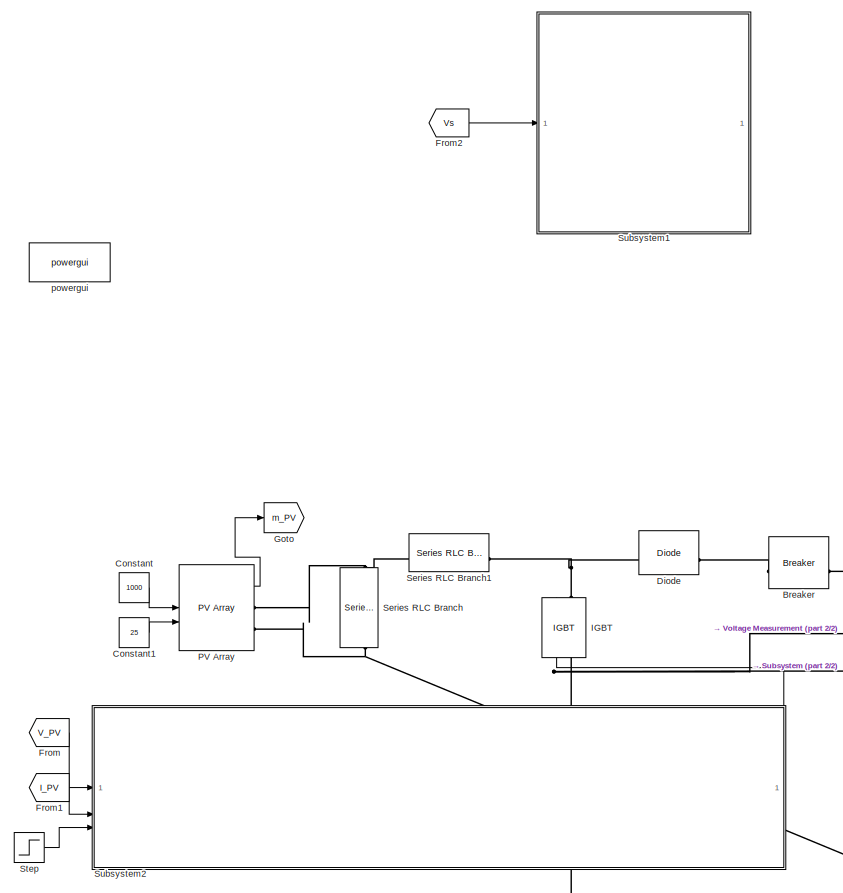
[diagram: root canvas - part 1/2, left side, full height]
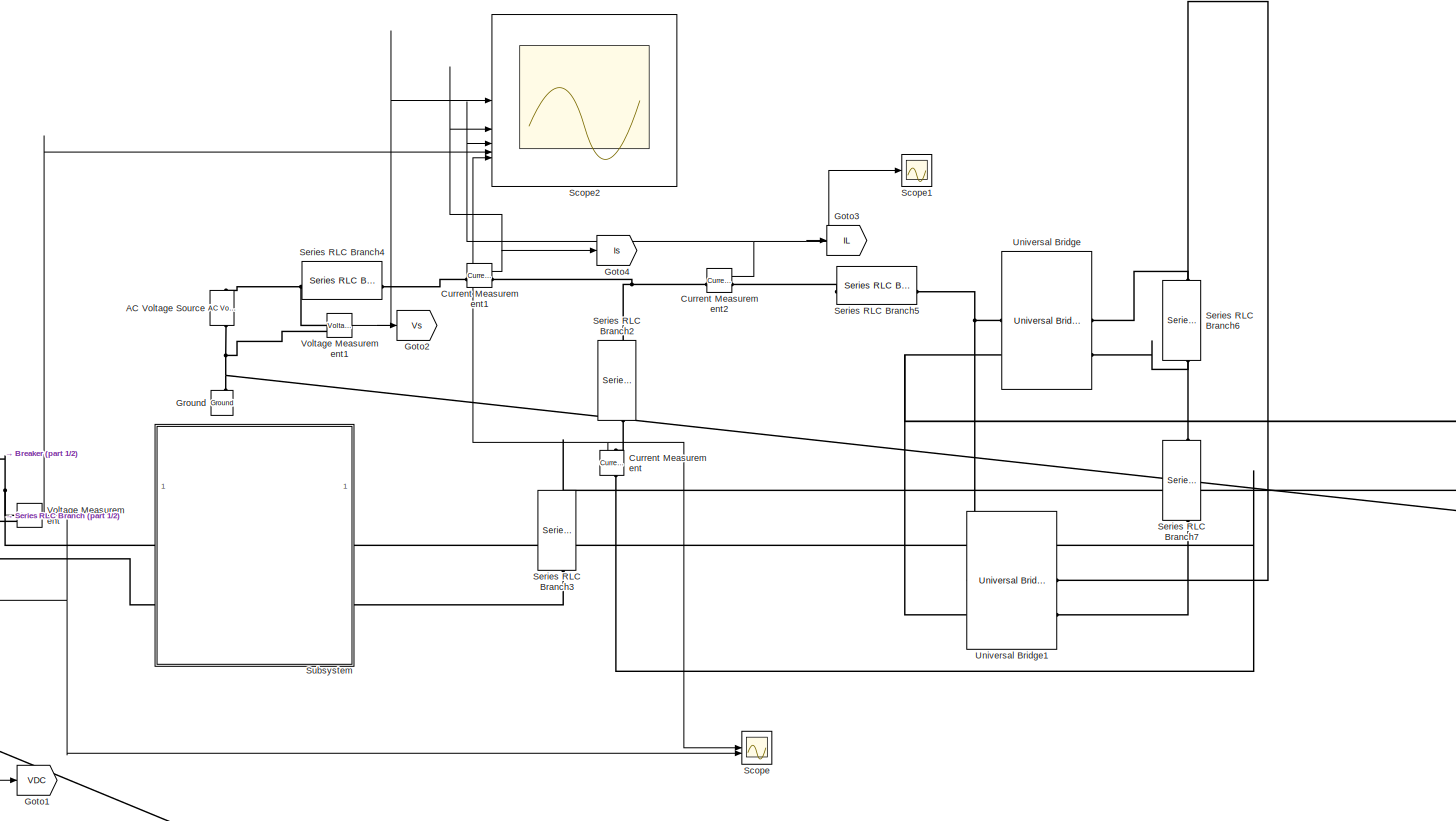
[diagram: root canvas - part 2/2, center side, full height]
MODEL slx_23263aa88aeb
KIND model
CONFIG AbsTol = auto
CONFIG EnableMultiTasking = off
CONFIG FixedStep = auto
CONFIG MaxStep = auto
CONFIG MinStep = auto
CONFIG RelTol = 1e-3
CONFIG SampleTimeConstraint = Unconstrained
CONFIG SolverName = VariableStepAuto
CONFIG StartTime = 0.0
CONFIG StopTime = 2
BLOCK [Reference] AC Voltage Source  REF=spsACVoltageSourceLib/AC Voltage Source
  LibrarySourceBlock = sps_lib/Sources/AC Voltage Source
  SourceBlock = spsACVoltageSourceLib/AC Voltage Source
  SourceType = AC Voltage Source
BLOCK [Reference] Breaker  REF=spsBreakerLib/Breaker
  LibrarySourceBlock = sps_lib/Power Grid Elements/Breaker
  SourceBlock = spsBreakerLib/Breaker
  SourceType = Breaker
BLOCK [Constant] Constant
  Value = 1000
BLOCK [Constant] Constant1
  Value = 25
BLOCK [Reference] Current Measurement  REF=spsCurrentMeasurementLib/Current Measurement
  LibrarySourceBlock = sps_lib/Sensors and Measurements/Current Measurement
  NameLocation = right
  SourceBlock = spsCurrentMeasurementLib/Current Measurement
  SourceType = Current Measurement
  UserDataPersistent = on
BLOCK [Reference] Current Measurement1  REF=spsCurrentMeasurementLib/Current Measurement
  LibrarySourceBlock = sps_lib/Sensors and Measurements/Current Measurement
  SourceBlock = spsCurrentMeasurementLib/Current Measurement
  SourceType = Current Measurement
  UserDataPersistent = on
BLOCK [Reference] Current Measurement2  REF=spsCurrentMeasurementLib/Current Measurement
  LibrarySourceBlock = sps_lib/Sensors and Measurements/Current Measurement
  SourceBlock = spsCurrentMeasurementLib/Current Measurement
  SourceType = Current Measurement
  UserDataPersistent = on
BLOCK [Reference] Diode  REF=spsDiodeLib/Diode
  LibrarySourceBlock = sps_lib/Power Electronics/Diode
  SourceBlock = spsDiodeLib/Diode
  SourceType = Diode
BLOCK [From] From
  GotoTag = V_PV
BLOCK [From] From1
  GotoTag = I_PV
BLOCK [From] From2
  GotoTag = Vs
  TagVisibility = global
BLOCK [Goto] Goto
  GotoTag = m_PV
  TagVisibility = global
BLOCK [Goto] Goto1
  GotoTag = VDC
  TagVisibility = global
BLOCK [Goto] Goto2
  GotoTag = Vs
  TagVisibility = global
BLOCK [Goto] Goto3
  GotoTag = IL
  TagVisibility = global
BLOCK [Goto] Goto4
  GotoTag = Is
  TagVisibility = global
BLOCK [Reference] Ground  REF=spsGroundLib/Ground
  LibrarySourceBlock = sps_lib/Utilities/Ground
  NameLocation = right
  SourceBlock = spsGroundLib/Ground
  SourceType = Ground
BLOCK [Reference] IGBT  REF=spsIGBTLib/IGBT
  LibrarySourceBlock = sps_lib/Power Electronics/IGBT
  NameLocation = left
  SourceBlock = spsIGBTLib/IGBT
  SourceType = IGBT
BLOCK [Reference] PV Array  REF=spsPVArrayLib/PV Array
  LibrarySourceBlock = sps_lib/Sources/PV Array
  SourceBlock = spsPVArrayLib/PV Array
  SourceType = PV array
BLOCK [Scope] Scope
  Floating = off
  NumInputPorts = 2
  ScopeSpecificationString = Simulink.scopes.TimeScopeBlockCfg('CurrentConfiguration', extmgr.ConfigurationSet(extmgr.Configuration('Core','General UI',true),extmgr.Configuration('Core','Source UI',true),extmgr.Configuration('Sources','WiredSimulink',true),extmgr.Configuration('Visuals','Time Domain',true),extmgr.Configuration('Tools','Plot Navigation',true),extmgr.Configuration('Tools','Measurements',true)),'Version','2024a'...<+1ch>
BLOCK [Scope] Scope1
  Floating = off
  NumInputPorts = 1
  ScopeSpecificationString = Simulink.scopes.TimeScopeBlockCfg('CurrentConfiguration', extmgr.ConfigurationSet(extmgr.Configuration('Core','General UI',true),extmgr.Configuration('Core','Source UI',true),extmgr.Configuration('Sources','WiredSimulink',true,'DataLoggingVariableName','ScopeData1'),extmgr.Configuration('Visuals','Time Domain',true),extmgr.Configuration('Tools','Plot Navigation',true),extmgr.Configuration('Tools',...<+40ch>
BLOCK [Scope] Scope2
  Floating = off
  NumInputPorts = 5
  ScopeSpecificationString = Simulink.scopes.TimeScopeBlockCfg('CurrentConfiguration', extmgr.ConfigurationSet(extmgr.Configuration('Core','General UI',true),extmgr.Configuration('Core','Source UI',true),extmgr.Configuration('Sources','WiredSimulink',true,'DataLoggingVariableName','ScopeData2'),extmgr.Configuration('Visuals','Time Domain',true,'SerializedDisplays',{struct('MinYLimReal','-287.5','MaxYLimReal','287.5','YLabelRe...<+5440ch>
BLOCK [Reference] Series RLC Branch  REF=spsSeriesRLCBranchLib/Series RLC Branch
  LibrarySourceBlock = sps_lib/Passives/Series RLC Branch
  NameLocation = left
  SourceBlock = spsSeriesRLCBranchLib/Series RLC Branch
  SourceType = Series RLC Branch
BLOCK [Reference] Series RLC Branch1  REF=spsSeriesRLCBranchLib/Series RLC Branch
  LibrarySourceBlock = sps_lib/Passives/Series RLC Branch
  NameLocation = top
  SourceBlock = spsSeriesRLCBranchLib/Series RLC Branch
  SourceType = Series RLC Branch
BLOCK [Reference] Series RLC Branch2  REF=spsSeriesRLCBranchLib/Series RLC Branch
  LibrarySourceBlock = sps_lib/Passives/Series RLC Branch
  NameLocation = left
  SourceBlock = spsSeriesRLCBranchLib/Series RLC Branch
  SourceType = Series RLC Branch
BLOCK [Reference] Series RLC Branch3  REF=spsSeriesRLCBranchLib/Series RLC Branch
  LibrarySourceBlock = sps_lib/Passives/Series RLC Branch
  NameLocation = left
  SourceBlock = spsSeriesRLCBranchLib/Series RLC Branch
  SourceType = Series RLC Branch
BLOCK [Reference] Series RLC Branch4  REF=spsSeriesRLCBranchLib/Series RLC Branch
  LibrarySourceBlock = sps_lib/Passives/Series RLC Branch
  SourceBlock = spsSeriesRLCBranchLib/Series RLC Branch
  SourceType = Series RLC Branch
BLOCK [Reference] Series RLC Branch5  REF=spsSeriesRLCBranchLib/Series RLC Branch
  LibrarySourceBlock = sps_lib/Passives/Series RLC Branch
  SourceBlock = spsSeriesRLCBranchLib/Series RLC Branch
  SourceType = Series RLC Branch
BLOCK [Reference] Series RLC Branch6  REF=spsSeriesRLCBranchLib/Series RLC Branch
  LibrarySourceBlock = sps_lib/Passives/Series RLC Branch
  NameLocation = left
  SourceBlock = spsSeriesRLCBranchLib/Series RLC Branch
  SourceType = Series RLC Branch
BLOCK [Reference] Series RLC Branch7  REF=spsSeriesRLCBranchLib/Series RLC Branch
  LibrarySourceBlock = sps_lib/Passives/Series RLC Branch
  NameLocation = left
  SourceBlock = spsSeriesRLCBranchLib/Series RLC Branch
  SourceType = Series RLC Branch
BLOCK [Step] Step
  SampleTime = 0
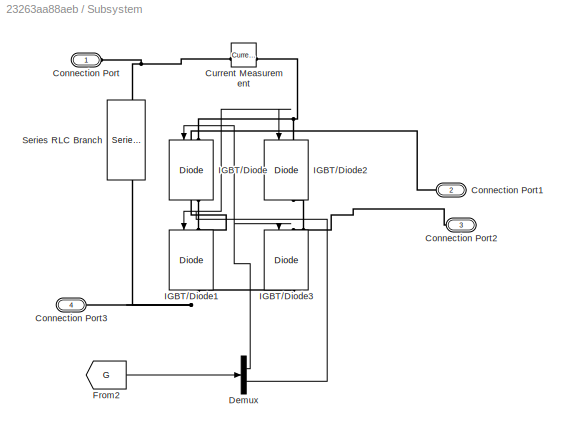
BLOCK [SubSystem] Subsystem
BLOCK [PMIOPort] Subsystem/Connection Port
  Side = Left
BLOCK [PMIOPort] Subsystem/Connection Port1
  NameLocation = top
  Port = 2
  Side = Right
BLOCK [PMIOPort] Subsystem/Connection Port2
  NameLocation = top
  Port = 3
  Side = Right
BLOCK [PMIOPort] Subsystem/Connection Port3
  Port = 4
  Side = Left
BLOCK [Reference] Subsystem/Current Measurement  REF=spsCurrentMeasurementLib/Current Measurement
  LibrarySourceBlock = sps_lib/Sensors and Measurements/Current Measurement
  SourceBlock = spsCurrentMeasurementLib/Current Measurement
  SourceType = Current Measurement
  UserDataPersistent = on
BLOCK [Demux] Subsystem/Demux
  Outputs = 2
BLOCK [From] Subsystem/From2
  GotoTag = G
BLOCK [Reference] Subsystem/IGBT//Diode  REF=spsIGBTDiodeLib/IGBT//Diode
  LibrarySourceBlock = sps_lib/Power Electronics/IGBT//Diode
  NameLocation = left
  SourceBlock = spsIGBTDiodeLib/IGBT//Diode
  SourceType = IGBT/Diode
BLOCK [Reference] Subsystem/IGBT//Diode1  REF=spsIGBTDiodeLib/IGBT//Diode
  LibrarySourceBlock = sps_lib/Power Electronics/IGBT//Diode
  NameLocation = left
  SourceBlock = spsIGBTDiodeLib/IGBT//Diode
  SourceType = IGBT/Diode
BLOCK [Reference] Subsystem/IGBT//Diode2  REF=spsIGBTDiodeLib/IGBT//Diode
  LibrarySourceBlock = sps_lib/Power Electronics/IGBT//Diode
  NameLocation = left
  SourceBlock = spsIGBTDiodeLib/IGBT//Diode
  SourceType = IGBT/Diode
BLOCK [Reference] Subsystem/IGBT//Diode3  REF=spsIGBTDiodeLib/IGBT//Diode
  LibrarySourceBlock = sps_lib/Power Electronics/IGBT//Diode
  NameLocation = left
  SourceBlock = spsIGBTDiodeLib/IGBT//Diode
  SourceType = IGBT/Diode
BLOCK [Reference] Subsystem/Series RLC Branch  REF=spsSeriesRLCBranchLib/Series RLC Branch
  LibrarySourceBlock = sps_lib/Passives/Series RLC Branch
  NameLocation = left
  SourceBlock = spsSeriesRLCBranchLib/Series RLC Branch
  SourceType = Series RLC Branch
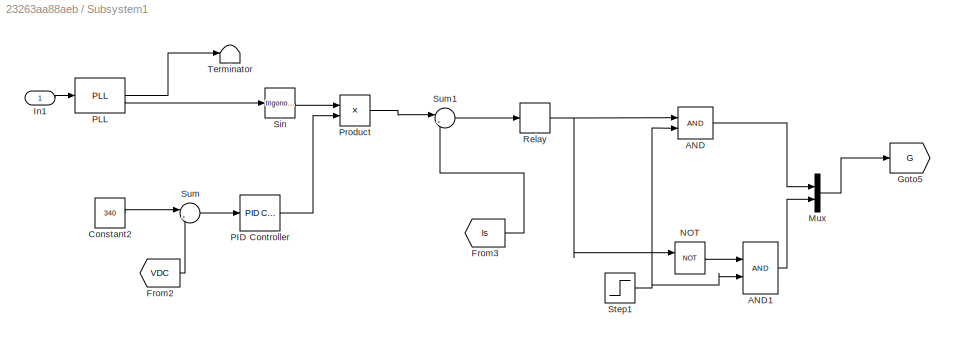
BLOCK [SubSystem] Subsystem1
BLOCK [Logic] Subsystem1/AND
  AllPortsSameDT = off
  IconShape = distinctive
  OutDataTypeStr = boolean
BLOCK [Logic] Subsystem1/AND1
  AllPortsSameDT = off
  IconShape = distinctive
  OutDataTypeStr = boolean
BLOCK [Constant] Subsystem1/Constant2
  Value = 340
BLOCK [From] Subsystem1/From2
  GotoTag = VDC
  TagVisibility = global
BLOCK [From] Subsystem1/From3
  GotoTag = Is
  TagVisibility = global
BLOCK [Goto] Subsystem1/Goto5
  GotoTag = G
BLOCK [Inport] Subsystem1/In1
BLOCK [Mux] Subsystem1/Mux
  DisplayOption = bar
  Inputs = 2
BLOCK [Logic] Subsystem1/NOT
  AllPortsSameDT = off
  IconShape = distinctive
  Operator = NOT
  OutDataTypeStr = boolean
BLOCK [Reference] Subsystem1/PID Controller  REF=slpidlib/PID Controller
  LibrarySourceBlock = simulink/Continuous/PID Controller
  SourceBlock = slpidlib/PID Controller
  SourceType = PID 1dof
BLOCK [Reference] Subsystem1/PLL  REF=spsPLLLib/PLL
  LibrarySourceBlock = sps_lib/Control/PLL
  SourceBlock = spsPLLLib/PLL
  SourceType = PLL
BLOCK [Product] Subsystem1/Product
BLOCK [Relay] Subsystem1/Relay
  OffSwitchValue = -0.02
  OnSwitchValue = 0.02
BLOCK [Trigonometry] Subsystem1/Sin
BLOCK [Step] Subsystem1/Step1
  SampleTime = 0
BLOCK [Sum] Subsystem1/Sum
  Inputs = |+-
BLOCK [Sum] Subsystem1/Sum1
  Inputs = |+-
BLOCK [Terminator] Subsystem1/Terminator
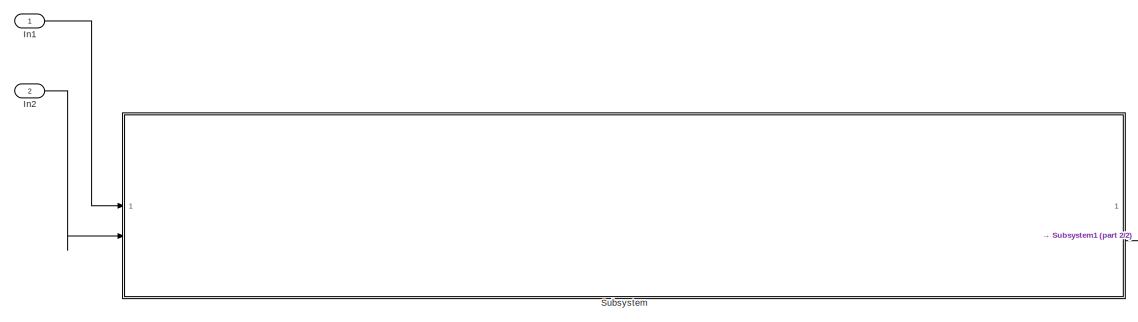
[diagram: Subsystem2 - part 1/2, left side, full height]
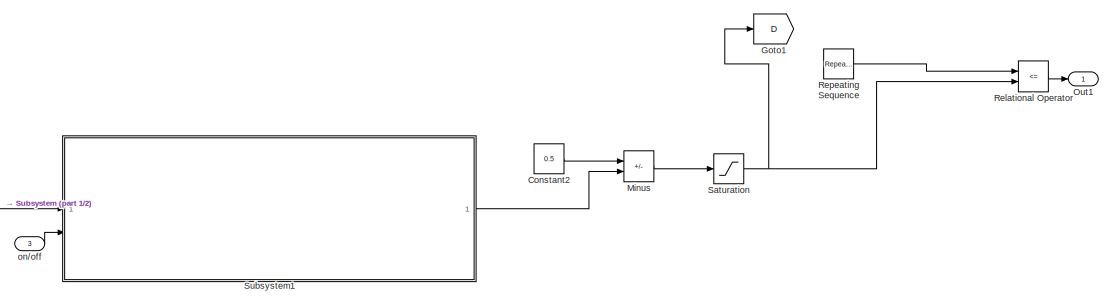
[diagram: Subsystem2 - part 2/2, right side, full height]
BLOCK [SubSystem] Subsystem2
  PortSchema = {"entries":[{"content":{"sides":[{"content":{"connectorIds":["In1","In2","In3"]},"type":"ConnectorPlacement.EquallySpacedRectSide","uuid":"14786eec-0241-4e35-83c3-907b121b9eb2"},{"content":{"side":"RIGHT"},"type":"ConnectorPlacement.EquallySpacedRectSide","uuid":"173d27b1-7f65-4748-b114-d30920d37356"},{"content":{"connectorIds":["Out1"],"side":"TOP"},"type":"ConnectorPlacement.EquallySpacedRectSid...<+234ch>
BLOCK [Constant] Subsystem2/Constant2
  Value = 0.5
BLOCK [Goto] Subsystem2/Goto1
  GotoTag = D
BLOCK [Inport] Subsystem2/In1
BLOCK [Inport] Subsystem2/In2
  Port = 2
BLOCK [Sum] Subsystem2/Minus
  IconShape = rectangular
  Inputs = +-
BLOCK [Outport] Subsystem2/Out1
BLOCK [RelationalOperator] Subsystem2/Relational Operator
  InputSameDT = off
  Operator = <=
  OutDataTypeStr = boolean
  RndMeth = Simplest
BLOCK [Reference] Subsystem2/Repeating Sequence  REF=simulink/Sources/Repeating
Sequence
  SourceBlock = simulink/Sources/Repeating\nSequence
  SourceType = Repeating table
BLOCK [Saturate] Subsystem2/Saturation
  LowerLimit = 0.01
  UpperLimit = 0.99
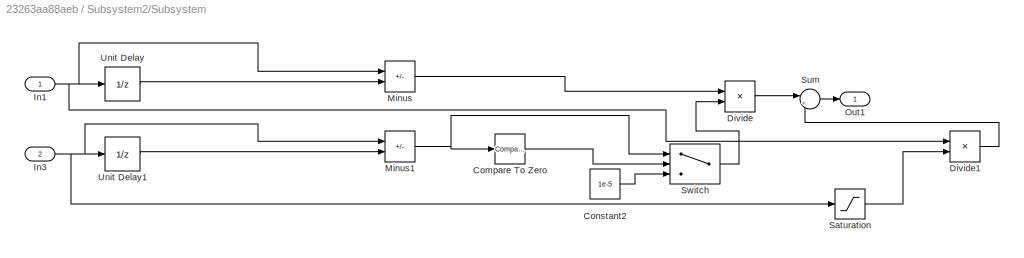
BLOCK [SubSystem] Subsystem2/Subsystem
BLOCK [Reference] Subsystem2/Subsystem/Compare To Zero  REF=simulink/Logic and Bit
Operations/Compare
To Zero
  SourceBlock = simulink/Logic and Bit\nOperations/Compare\nTo Zero
  SourceType = Compare To Zero
BLOCK [Constant] Subsystem2/Subsystem/Constant2
  Value = 1e-5
BLOCK [Product] Subsystem2/Subsystem/Divide
  Inputs = */
BLOCK [Product] Subsystem2/Subsystem/Divide1
  Inputs = */
BLOCK [Inport] Subsystem2/Subsystem/In1
BLOCK [Inport] Subsystem2/Subsystem/In3
  Port = 2
BLOCK [Sum] Subsystem2/Subsystem/Minus
  IconShape = rectangular
  Inputs = +-
BLOCK [Sum] Subsystem2/Subsystem/Minus1
  IconShape = rectangular
  Inputs = +-
BLOCK [Outport] Subsystem2/Subsystem/Out1
BLOCK [Saturate] Subsystem2/Subsystem/Saturation
  LowerLimit = eps
  UpperLimit = inf
BLOCK [Sum] Subsystem2/Subsystem/Sum
  Inputs = |++
BLOCK [Switch] Subsystem2/Subsystem/Switch
  Criteria = u2 > Threshold
  InputSameDT = off
  SaturateOnIntegerOverflow = off
BLOCK [UnitDelay] Subsystem2/Subsystem/Unit Delay
  HasFrameUpgradeWarning = on
  SampleTime = -1
BLOCK [UnitDelay] Subsystem2/Subsystem/Unit Delay1
  HasFrameUpgradeWarning = on
  SampleTime = -1
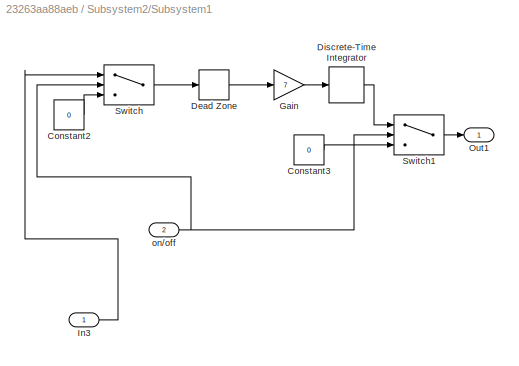
BLOCK [SubSystem] Subsystem2/Subsystem1
BLOCK [Constant] Subsystem2/Subsystem1/Constant2
  Value = 0
BLOCK [Constant] Subsystem2/Subsystem1/Constant3
  Value = 0
BLOCK [DeadZone] Subsystem2/Subsystem1/Dead Zone
  LowerValue = -0.06
  UpperValue = 0.06
BLOCK [DiscreteIntegrator] Subsystem2/Subsystem1/Discrete-Time Integrator
  ICPrevOutput = DiscIntNeverNeededParam
  ICPrevScaledInput = DiscIntNeverNeededParam
  LimitOutput = on
  LowerSaturationLimit = -1
  SampleTime = 1e-5
  UpperSaturationLimit = 1
  gainval = 1.8
BLOCK [Gain] Subsystem2/Subsystem1/Gain
  Gain = 7
BLOCK [Inport] Subsystem2/Subsystem1/In3
BLOCK [Outport] Subsystem2/Subsystem1/Out1
BLOCK [Switch] Subsystem2/Subsystem1/Switch
  Criteria = u2 > Threshold
  InputSameDT = off
  SaturateOnIntegerOverflow = off
  Threshold = 0.5
BLOCK [Switch] Subsystem2/Subsystem1/Switch1
  Criteria = u2 > Threshold
  InputSameDT = off
  SaturateOnIntegerOverflow = off
BLOCK [Inport] Subsystem2/Subsystem1/on//off
  Port = 2
BLOCK [Inport] Subsystem2/on//off
  Port = 3
BLOCK [Reference] Universal Bridge  REF=spsUniversalBridgeLib/Universal Bridge
  LibrarySourceBlock = sps_lib/Power Electronics/Universal Bridge
  SourceBlock = spsUniversalBridgeLib/Universal Bridge
  SourceType = Universal Bridge
BLOCK [Reference] Universal Bridge1  REF=spsUniversalBridgeLib/Universal Bridge
  LibrarySourceBlock = sps_lib/Power Electronics/Universal Bridge
  SourceBlock = spsUniversalBridgeLib/Universal Bridge
  SourceType = Universal Bridge
BLOCK [Reference] Voltage Measurement  REF=spsVoltageMeasurementLib/Voltage Measurement
  LibrarySourceBlock = sps_lib/Sensors and Measurements/Voltage Measurement
  SourceBlock = spsVoltageMeasurementLib/Voltage Measurement
  SourceType = Voltage Measurement
  UserDataPersistent = on
BLOCK [Reference] Voltage Measurement1  REF=spsVoltageMeasurementLib/Voltage Measurement
  LibrarySourceBlock = sps_lib/Sensors and Measurements/Voltage Measurement
  SourceBlock = spsVoltageMeasurementLib/Voltage Measurement
  SourceType = Voltage Measurement
  UserDataPersistent = on
BLOCK [Reference] powergui  REF=sps_lib/powergui
  LibrarySourceBlock = sps_lib/powergui
  Priority = 1
  SourceBlock = sps_lib/powergui
  SourceType = PSB option menu block
LINE Constant1:1 -> PV Array:2
LINE Constant:1 -> PV Array:1
NET Current Measurement1:1 -> Goto4:1, Scope2:2
NET Current Measurement2:1 -> Goto3:1, Scope1:1, Scope2:3
NET Current Measurement:1 -> Scope2:5, Scope:1
LINE From1:1 -> Subsystem2:2
LINE From2:1 -> Subsystem1:1
LINE From:1 -> Subsystem2:1
LINE PV Array:1 -> Goto:1
LINE Step:1 -> Subsystem2:3
NET Subsystem/Demux:1 -> Subsystem/IGBT//Diode3:1, Subsystem/IGBT//Diode:1
NET Subsystem/Demux:2 -> Subsystem/IGBT//Diode1:1, Subsystem/IGBT//Diode2:1
LINE Subsystem/From2:1 -> Subsystem/Demux:1
LINE Subsystem1/AND1:1 -> Subsystem1/Mux:2
LINE Subsystem1/AND:1 -> Subsystem1/Mux:1
LINE Subsystem1/Constant2:1 -> Subsystem1/Sum:1
LINE Subsystem1/From2:1 -> Subsystem1/Sum:2
LINE Subsystem1/From3:1 -> Subsystem1/Sum1:2
LINE Subsystem1/In1:1 -> Subsystem1/PLL:1
LINE Subsystem1/Mux:1 -> Subsystem1/Goto5:1
LINE Subsystem1/NOT:1 -> Subsystem1/AND1:1
LINE Subsystem1/PID Controller:1 -> Subsystem1/Product:2
LINE Subsystem1/PLL:1 -> Subsystem1/Terminator:1
LINE Subsystem1/PLL:2 -> Subsystem1/Sin:1
LINE Subsystem1/Product:1 -> Subsystem1/Sum1:1
NET Subsystem1/Relay:1 -> Subsystem1/AND:1, Subsystem1/NOT:1
LINE Subsystem1/Sin:1 -> Subsystem1/Product:1
NET Subsystem1/Step1:1 -> Subsystem1/AND1:2, Subsystem1/AND:2
LINE Subsystem1/Sum1:1 -> Subsystem1/Relay:1
LINE Subsystem1/Sum:1 -> Subsystem1/PID Controller:1
LINE Subsystem2/Constant2:1 -> Subsystem2/Minus:1
LINE Subsystem2/In1:1 -> Subsystem2/Subsystem:1
LINE Subsystem2/In2:1 -> Subsystem2/Subsystem:2
LINE Subsystem2/Minus:1 -> Subsystem2/Saturation:1
LINE Subsystem2/Relational Operator:1 -> Subsystem2/Out1:1
LINE Subsystem2/Repeating Sequence:1 -> Subsystem2/Relational Operator:1
NET Subsystem2/Saturation:1 -> Subsystem2/Goto1:1, Subsystem2/Relational Operator:2
LINE Subsystem2/Subsystem/Compare To Zero:1 -> Subsystem2/Subsystem/Switch:2
LINE Subsystem2/Subsystem/Constant2:1 -> Subsystem2/Subsystem/Switch:3
LINE Subsystem2/Subsystem/Divide1:1 -> Subsystem2/Subsystem/Sum:2
LINE Subsystem2/Subsystem/Divide:1 -> Subsystem2/Subsystem/Sum:1
NET Subsystem2/Subsystem/In1:1 -> Subsystem2/Subsystem/Divide1:1, Subsystem2/Subsystem/Minus:1, Subsystem2/Subsystem/Unit Delay:1
NET Subsystem2/Subsystem/In3:1 -> Subsystem2/Subsystem/Minus1:1, Subsystem2/Subsystem/Saturation:1, Subsystem2/Subsystem/Unit Delay1:1
NET Subsystem2/Subsystem/Minus1:1 -> Subsystem2/Subsystem/Compare To Zero:1, Subsystem2/Subsystem/Switch:1
LINE Subsystem2/Subsystem/Minus:1 -> Subsystem2/Subsystem/Divide:1
LINE Subsystem2/Subsystem/Saturation:1 -> Subsystem2/Subsystem/Divide1:2
LINE Subsystem2/Subsystem/Sum:1 -> Subsystem2/Subsystem/Out1:1
LINE Subsystem2/Subsystem/Switch:1 -> Subsystem2/Subsystem/Divide:2
LINE Subsystem2/Subsystem/Unit Delay1:1 -> Subsystem2/Subsystem/Minus1:2
LINE Subsystem2/Subsystem/Unit Delay:1 -> Subsystem2/Subsystem/Minus:2
LINE Subsystem2/Subsystem1/Constant2:1 -> Subsystem2/Subsystem1/Switch:3
LINE Subsystem2/Subsystem1/Constant3:1 -> Subsystem2/Subsystem1/Switch1:3
LINE Subsystem2/Subsystem1/Dead Zone:1 -> Subsystem2/Subsystem1/Gain:1
LINE Subsystem2/Subsystem1/Discrete-Time Integrator:1 -> Subsystem2/Subsystem1/Switch1:1
LINE Subsystem2/Subsystem1/Gain:1 -> Subsystem2/Subsystem1/Discrete-Time Integrator:1
LINE Subsystem2/Subsystem1/In3:1 -> Subsystem2/Subsystem1/Switch:1
LINE Subsystem2/Subsystem1/Switch1:1 -> Subsystem2/Subsystem1/Out1:1
LINE Subsystem2/Subsystem1/Switch:1 -> Subsystem2/Subsystem1/Dead Zone:1
NET Subsystem2/Subsystem1/on//off:1 -> Subsystem2/Subsystem1/Switch1:2, Subsystem2/Subsystem1/Switch:2
LINE Subsystem2/Subsystem1:1 -> Subsystem2/Minus:2
LINE Subsystem2/Subsystem:1 -> Subsystem2/Subsystem1:1
LINE Subsystem2/on//off:1 -> Subsystem2/Subsystem1:2
LINE Subsystem2:1 -> IGBT:1
NET Voltage Measurement1:1 -> Goto2:1, Scope2:1
NET Voltage Measurement:1 -> Goto1:1, Scope2:4, Scope:2
PNET net1: AC Voltage Source:LConn1 -- Ground:LConn1 -- Series RLC Branch3:LConn1 -- Universal Bridge1:LConn2 -- Universal Bridge:LConn2 -- Voltage Measurement1:LConn2
PNET net2: AC Voltage Source:RConn1 -- Series RLC Branch4:LConn1 -- Voltage Measurement1:LConn1
PLINE Breaker:LConn1 -- Diode:RConn1
PNET net3: Breaker:RConn1 -- Subsystem:LConn1 -- Voltage Measurement:LConn1
PLINE Current Measurement1:LConn1 -- Series RLC Branch4:RConn1
PNET net4: Current Measurement1:RConn1 -- Current Measurement2:LConn1 -- Series RLC Branch2:LConn1
PLINE Current Measurement2:RConn1 -- Series RLC Branch5:LConn1
PLINE Current Measurement:LConn1 -- Subsystem:RConn1
PLINE Current Measurement:RConn1 -- Series RLC Branch2:RConn1
PNET net5: Diode:LConn1 -- IGBT:LConn1 -- Series RLC Branch1:LConn1
PNET net6: IGBT:RConn1 -- PV Array:RConn2 -- Series RLC Branch:RConn1 -- Subsystem:LConn2 -- Voltage Measurement:LConn2
PNET net7: PV Array:RConn1 -- Series RLC Branch1:RConn1 -- Series RLC Branch:LConn1
PLINE Series RLC Branch3:RConn1 -- Subsystem:RConn2
PNET net8: Series RLC Branch5:RConn1 -- Universal Bridge1:LConn1 -- Universal Bridge:LConn1
PLINE Series RLC Branch6:LConn1 -- Universal Bridge:RConn1
PLINE Series RLC Branch6:RConn1 -- Universal Bridge:RConn2
PLINE Series RLC Branch7:LConn1 -- Universal Bridge1:RConn1
PLINE Series RLC Branch7:RConn1 -- Universal Bridge1:RConn2
PNET net9: Subsystem/Connection Port1:RConn1 -- Subsystem/IGBT//Diode1:LConn1 -- Subsystem/IGBT//Diode:RConn1
PNET net10: Subsystem/Connection Port2:RConn1 -- Subsystem/IGBT//Diode2:RConn1 -- Subsystem/IGBT//Diode3:LConn1
PNET net11: Subsystem/Connection Port3:RConn1 -- Subsystem/IGBT//Diode1:RConn1 -- Subsystem/IGBT//Diode3:RConn1 -- Subsystem/Series RLC Branch:RConn1
PNET net12: Subsystem/Connection Port:RConn1 -- Subsystem/Current Measurement:LConn1 -- Subsystem/Series RLC Branch:LConn1
PNET net13: Subsystem/Current Measurement:RConn1 -- Subsystem/IGBT//Diode2:LConn1 -- Subsystem/IGBT//Diode:LConn1
note: NET lines group one-source signal fan-out (src -> all destinations, sorted); 1:1 wires keep LINE; PNET lines group multi-terminal physical nets as a canonical sorted terminal list (undirected conserving connections); 2-terminal nets keep the pairwise PLINE form
